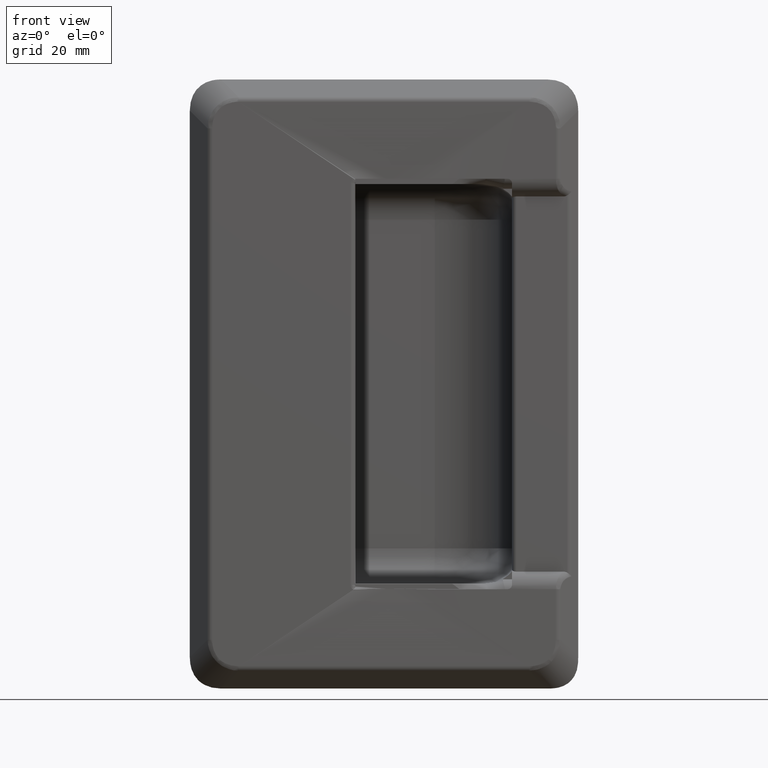
[diagram: clean part render]
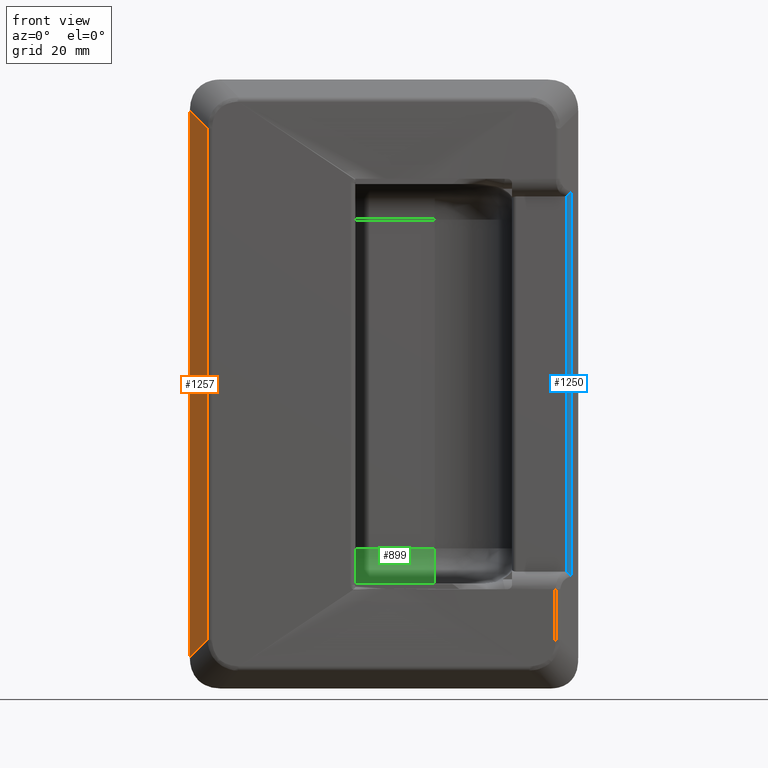
[diagram: same view with three faces highlighted in distinct colors, each labeled with its STEP entity id]
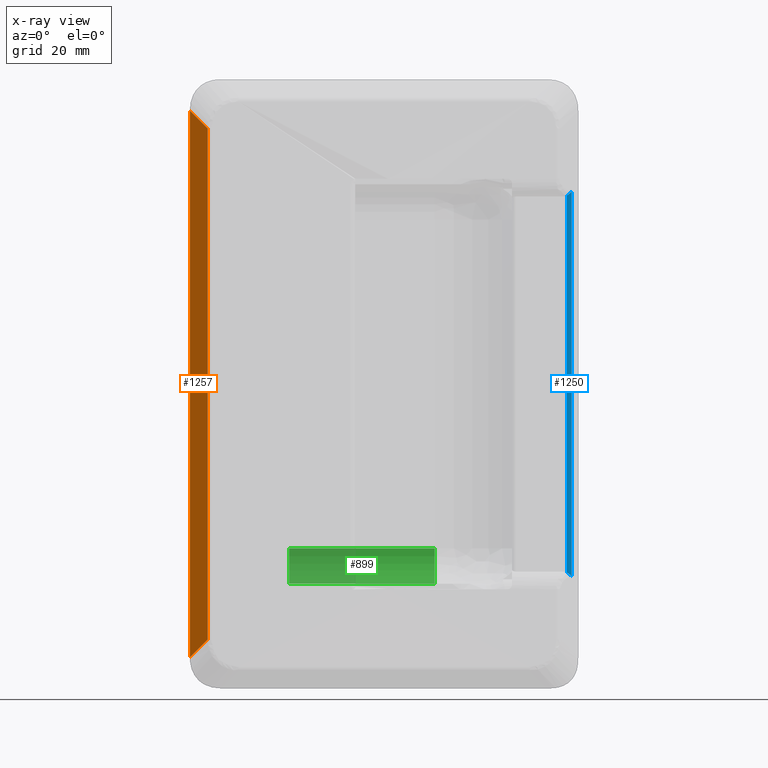
[diagram: x-ray of the same camera — body ghosted, the three highlighted faces saturated]
A machine part, front view with three faces highlighted in distinct colors.
The next image is the same camera in x-ray (body ghosted, the three faces saturated) — at least one of them is partly hidden behind the body in this view.
Their STEP definitions:

[orange] entity #1257 — the highlighted planar face has unit normal (0.7071, 0.7071, 0).
#1257=ADVANCED_FACE('',(#6865),#6864,.F.);
#6864=PLANE('',#11288);
#6865=FACE_OUTER_BOUND('',#11289,.T.);
#11285=CARTESIAN_POINT('',(-3.95992738109E+01,3.92738110422E-02,-7.19289321883E+01));
#11286=DIRECTION('',(7.07106781187E-01,7.07106781187E-01,-0.00000000000E+00));
#11287=DIRECTION('',(-7.07106781187E-01,7.07106781187E-01,0.00000000000E+00));
#11288=AXIS2_PLACEMENT_3D('',#11285,#11286,#11287);
#11289=EDGE_LOOP('',(#14059,#14060,#14061,#14062));
#14059=ORIENTED_EDGE('',*,*,#15527,.F.);
#14060=ORIENTED_EDGE('',*,*,#15548,.F.);
#14061=ORIENTED_EDGE('',*,*,#15536,.F.);
#14062=ORIENTED_EDGE('',*,*,#15452,.F.);
#15452=EDGE_CURVE('',#23840,#23841,#23842,.T.);
#15527=EDGE_CURVE('',#24341,#23840,#24348,.T.);
#15536=EDGE_CURVE('',#23841,#24404,#24405,.T.);
#15548=EDGE_CURVE('',#24404,#24341,#24481,.T.);
#23840=VERTEX_POINT('',#30690);
#23841=VERTEX_POINT('',#30691);
#23842=LINE('',#30692,#30693);
#24341=VERTEX_POINT('',#31027);
#24348=LINE('',#31031,#31032);
#24404=VERTEX_POINT('',#31065);
#24405=LINE('',#31066,#31067);
#24481=LINE('',#31109,#31110);
#30690=CARTESIAN_POINT('',(-4.39999999998E+01,4.44000000000E+00,-6.19289321883E+01));
#30691=CARTESIAN_POINT('',(-4.39999999998E+01,4.44000000000E+00,6.19289321879E+01));
#30692=CARTESIAN_POINT('',(-4.39999999998E+01,4.44000000000E+00,-6.19289321883E+01));
#30693=VECTOR('',#30694,1.23857864376E+02);
#30694=DIRECTION('',(0.00000000000E+00,0.00000000000E+00,1.00000000000E+00));
#31027=CARTESIAN_POINT('',(-3.99993398280E+01,4.39339828220E-01,-5.79282720165E+01));
#31031=CARTESIAN_POINT('',(-3.99993398280E+01,4.39339828220E-01,-5.79282720165E+01));
#31032=VECTOR('',#31033,6.92934668134E+00);
#31033=DIRECTION('',(-5.77350269190E-01,5.77350269190E-01,-5.77350269190E-01));
#31065=CARTESIAN_POINT('',(-3.99993398280E+01,4.39339828220E-01,5.79282720162E+01));
#31066=CARTESIAN_POINT('',(-4.39999999998E+01,4.44000000000E+00,6.19289321879E+01));
#31067=VECTOR('',#31068,6.92934668134E+00);
#31068=DIRECTION('',(5.77350269190E-01,-5.77350269190E-01,-5.77350269190E-01));
#31109=CARTESIAN_POINT('',(-3.99993398280E+01,4.39339828220E-01,5.79282720162E+01));
#31110=VECTOR('',#31111,1.15856544033E+02);
#31111=DIRECTION('',(0.00000000000E+00,0.00000000000E+00,-1.00000000000E+00));

[blue] entity #1250 — the highlighted cylindrical surface (edge-blend (fillet) strip) has radius 1.5 mm, axis along (0, 0, -1).
#1250=ADVANCED_FACE('',(#6795),#6794,.T.);
#6794=CYLINDRICAL_SURFACE('',#11049,1.50000000000E+00);
#6795=FACE_OUTER_BOUND('',#11050,.T.);
#11046=CARTESIAN_POINT('',(4.14386651307E+01,3.99998547408E+00,-4.41075334440E+01));
#11047=DIRECTION('',(1.21767821253E-13,2.02548367102E-13,-1.00000000000E+00));
#11048=DIRECTION('',(5.54223333891E-13,1.00000000000E+00,2.02548367102E-13));
#11049=AXIS2_PLACEMENT_3D('',#11046,#11047,#11048);
#11050=EDGE_LOOP('',(#14005,#14006,#14007,#14008));
#14005=ORIENTED_EDGE('',*,*,#15565,.T.);
#14006=ORIENTED_EDGE('',*,*,#15566,.F.);
#14007=ORIENTED_EDGE('',*,*,#15567,.T.);
#14008=ORIENTED_EDGE('',*,*,#15562,.T.);
#15562=EDGE_CURVE('',#24572,#24565,#24573,.T.);
#15565=EDGE_CURVE('',#24565,#24591,#24592,.T.);
#15566=EDGE_CURVE('',#24598,#24591,#24599,.T.);
#15567=EDGE_CURVE('',#24598,#24572,#24605,.T.);
#24565=VERTEX_POINT('',#31158);
#24572=VERTEX_POINT('',#31163);
#24573=(BOUNDED_CURVE() B_SPLINE_CURVE(3,(#31164,#31165,#31166,#31167),.UNSPECIFIED.,.F.,.F.) B_SPLINE_CURVE_WITH_KNOTS((4,4),(0.00000000000E+00,1.00000000000E+00),.UNSPECIFIED.) CURVE() GEOMETRIC_REPRESENTATION_ITEM() RATIONAL_B_SPLINE_CURVE((1.00000000000E+00,1.00000000000E+00,1.00000000000E+00,1.00000000000E+00)) REPRESENTATION_ITEM('') );
#24591=VERTEX_POINT('',#31174);
#24592=LINE('',#31175,#31176);
#24598=VERTEX_POINT('',#31178);
#24599=(BOUNDED_CURVE() B_SPLINE_CURVE(3,(#31179,#31180,#31181,#31182),.UNSPECIFIED.,.F.,.F.) B_SPLINE_CURVE_WITH_KNOTS((4,4),(0.00000000000E+00,1.00000000000E+00),.UNSPECIFIED.) CURVE() GEOMETRIC_REPRESENTATION_ITEM() RATIONAL_B_SPLINE_CURVE((1.00000000000E+00,1.00000000000E+00,1.00000000000E+00,1.00000000000E+00)) REPRESENTATION_ITEM('') );
#24605=LINE('',#31183,#31184);
#31158=CARTESIAN_POINT('',(4.14386651307E+01,2.49998547407E+00,4.27022164110E+01));
#31163=CARTESIAN_POINT('',(4.24993253025E+01,2.93932530229E+00,4.35845192130E+01));
#31164=CARTESIAN_POINT('',(4.24993253025E+01,2.93932530229E+00,4.35845192130E+01));
#31165=CARTESIAN_POINT('',(4.22425101491E+01,2.68251014890E+00,4.32589577606E+01));
#31166=CARTESIAN_POINT('',(4.18755131204E+01,2.49998547407E+00,4.29414502424E+01));
#31167=CARTESIAN_POINT('',(4.14386651307E+01,2.49998547407E+00,4.27022164110E+01));
#31174=CARTESIAN_POINT('',(4.14386651307E+01,2.49998547407E+00,-4.27022164115E+01));
#31175=CARTESIAN_POINT('',(4.14386651307E+01,2.49998547407E+00,4.27022164110E+01));
#31176=VECTOR('',#31177,8.54044328225E+01);
#31177=DIRECTION('',(1.01916823582E-13,1.02338010455E-13,-1.00000000000E+00));
#31178=CARTESIAN_POINT('',(4.24993253025E+01,2.93932530229E+00,-4.35845192135E+01));
#31179=CARTESIAN_POINT('',(4.24993253025E+01,2.93932530229E+00,-4.35845192135E+01));
#31180=CARTESIAN_POINT('',(4.22425101491E+01,2.68251014891E+00,-4.32589577611E+01));
#31181=CARTESIAN_POINT('',(4.18755131204E+01,2.49998547407E+00,-4.29414502429E+01));
#31182=CARTESIAN_POINT('',(4.14386651307E+01,2.49998547407E+00,-4.27022164115E+01));
#31183=CARTESIAN_POINT('',(4.24993253025E+01,2.93932530229E+00,-4.35845192135E+01));
#31184=VECTOR('',#31185,8.71690384265E+01);
#31185=DIRECTION('',(-1.03277225774E-13,-1.02329634811E-13,1.00000000000E+00));

[green] entity #899 — the highlighted cylindrical surface (edge-blend (fillet) strip) has radius 8 mm, axis along (-1, -0, -0).
#899=ADVANCED_FACE('',(#3253),#3252,.F.);
#3252=CYLINDRICAL_SURFACE('',#8415,8.00000000000E+00);
#3253=FACE_OUTER_BOUND('',#8416,.T.);
#8412=CARTESIAN_POINT('',(-2.14999999991E+01,1.75000000002E+01,-3.72500000002E+01));
#8413=DIRECTION('',(-1.00000000000E+00,-7.85046229325E-17,-8.58202398035E-13));
#8414=DIRECTION('',(-8.58202398035E-13,-2.66453525910E-15,1.00000000000E+00));
#8415=AXIS2_PLACEMENT_3D('',#8412,#8413,#8414);
#8416=EDGE_LOOP('',(#12274,#12275,#12276,#12277));
#12274=ORIENTED_EDGE('',*,*,#14677,.F.);
#12275=ORIENTED_EDGE('',*,*,#14678,.T.);
#12276=ORIENTED_EDGE('',*,*,#14676,.T.);
#12277=ORIENTED_EDGE('',*,*,#14679,.T.);
#14676=EDGE_CURVE('',#18636,#18695,#18702,.T.);
#14677=EDGE_CURVE('',#18708,#18709,#18710,.T.);
#14678=EDGE_CURVE('',#18708,#18636,#18716,.T.);
#14679=EDGE_CURVE('',#18695,#18709,#18722,.T.);
#18636=VERTEX_POINT('',#27052);
#18695=VERTEX_POINT('',#27089);
#18702=CIRCLE('',#27097,8.00000000000E+00);
#18708=VERTEX_POINT('',#27098);
#18709=VERTEX_POINT('',#27099);
#18710=CIRCLE('',#27103,8.00000000000E+00);
#18716=LINE('',#27104,#27105);
#18722=LINE('',#27107,#27108);
#27052=CARTESIAN_POINT('',(-2.14999999991E+01,2.55000000002E+01,-3.72500000002E+01));
#27089=CARTESIAN_POINT('',(-2.14999999990E+01,1.75000000002E+01,-4.52500000002E+01));
#27094=CARTESIAN_POINT('',(-2.14999999991E+01,1.75000000002E+01,-3.72500000002E+01));
#27095=DIRECTION('',(-1.00000000000E+00,8.58424442640E-13,0.00000000000E+00));
#27096=DIRECTION('',(-8.58424442640E-13,-1.00000000000E+00,-0.00000000000E+00));
#27097=AXIS2_PLACEMENT_3D('',#27094,#27095,#27096);
#27098=CARTESIAN_POINT('',(1.14999999995E+01,2.55000000002E+01,-3.72500000002E+01));
#27099=CARTESIAN_POINT('',(1.14999999995E+01,1.75000000002E+01,-4.52500000002E+01));
#27100=CARTESIAN_POINT('',(1.14999999995E+01,1.75000000002E+01,-3.72500000002E+01));
#27101=DIRECTION('',(-1.00000000000E+00,0.00000000000E+00,-8.58504775871E-13));
#27102=DIRECTION('',(-0.00000000000E+00,-1.00000000000E+00,-0.00000000000E+00));
#27103=AXIS2_PLACEMENT_3D('',#27100,#27101,#27102);
#27104=CARTESIAN_POINT('',(1.14999999995E+01,2.55000000002E+01,-3.72500000002E+01));
#27105=VECTOR('',#27106,3.29999999986E+01);
#27106=DIRECTION('',(-1.00000000000E+00,0.00000000000E+00,0.00000000000E+00));
#27107=CARTESIAN_POINT('',(-2.14999999991E+01,1.75000000002E+01,-4.52500000002E+01));
#27108=VECTOR('',#27109,3.29999999986E+01);
#27109=DIRECTION('',(1.00000000000E+00,0.00000000000E+00,8.57603550502E-13));